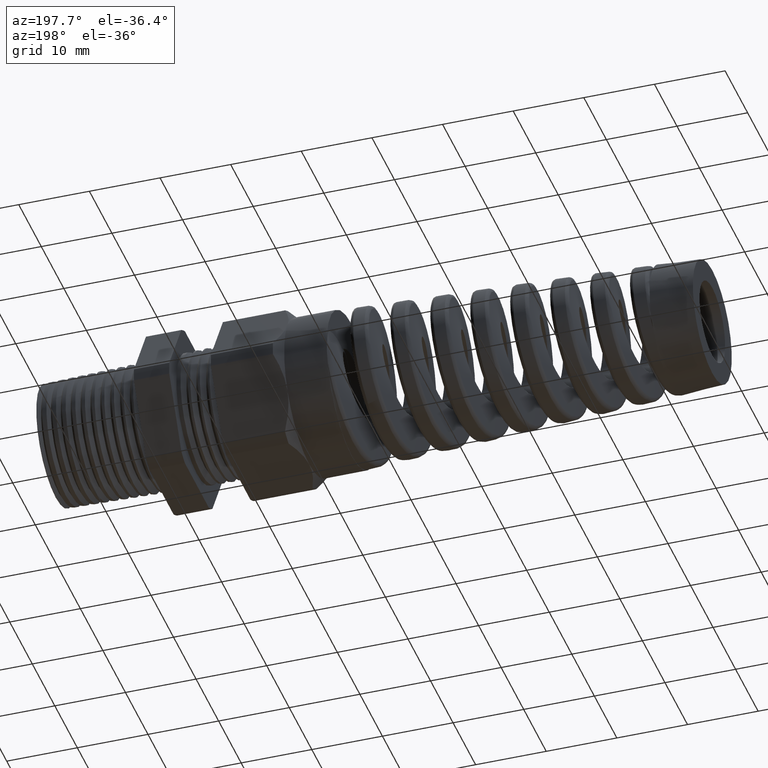
[diagram: clean part render]
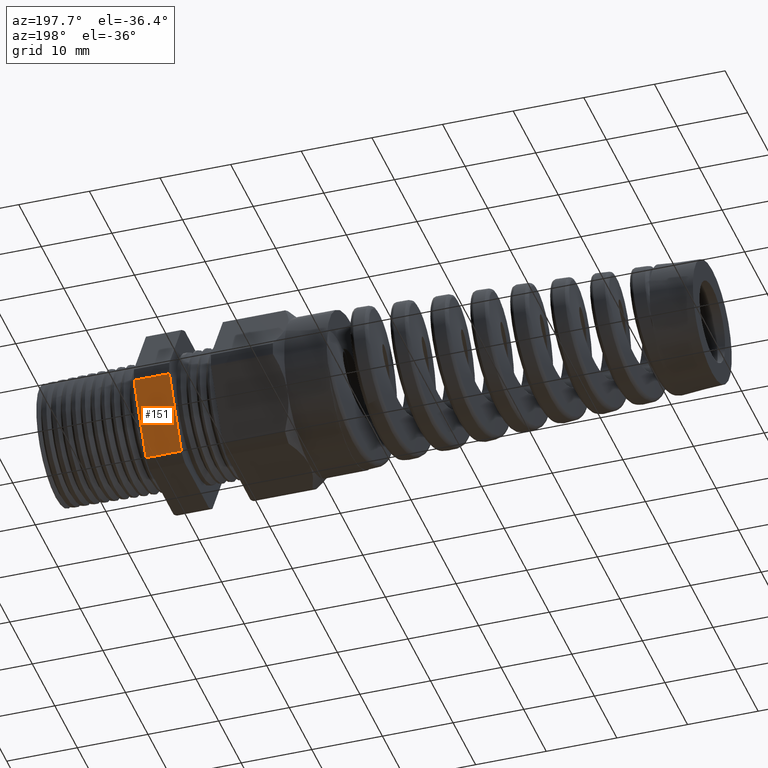
[diagram: same view with one face highlighted and labeled with its STEP entity id]
A machine part, auxiliary view. The second image highlights one B-rep face of the part: STEP entity #151.
In plain terms, the highlighted planar face has unit normal (0, 0.866, -0.5).
Its self-contained STEP definition (entity closure, byte-faithful):
#151 = ADVANCED_FACE ( 'NONE', ( #10973 ), #10972, .T. ) ;
#155 = ORIENTED_EDGE ( 'NONE', *, *, #157, .T. ) ;
#156 = EDGE_LOOP ( 'NONE', ( #155, #7973, #7943, #7935 ) ) ;
#157 = EDGE_CURVE ( 'NONE', #5263, #6843, #10971, .T. ) ;
#5262 = EDGE_CURVE ( 'NONE', #5263, #5264, #14309, .T. ) ;
#5263 = VERTEX_POINT ( 'NONE', #14305 ) ;
#5264 = VERTEX_POINT ( 'NONE', #14304 ) ;
#6843 = VERTEX_POINT ( 'NONE', #14918 ) ;
#6993 = EDGE_CURVE ( 'NONE', #15414, #6843, #14902, .T. ) ;
#7388 = EDGE_CURVE ( 'NONE', #5264, #15414, #14963, .T. ) ;
#7935 = ORIENTED_EDGE ( 'NONE', *, *, #5262, .F. ) ;
#7943 = ORIENTED_EDGE ( 'NONE', *, *, #7388, .F. ) ;
#7973 = ORIENTED_EDGE ( 'NONE', *, *, #6993, .F. ) ;
#8959 = CARTESIAN_POINT ( 'NONE',  ( -0.5068503937007874400, 0.4815054990391102700, -0.03600801154045385500 ) ) ;
#10964 = DIRECTION ( 'NONE',  ( -1.000000000000000000, 0.0000000000000000000, 0.0000000000000000000 ) ) ;
#10965 = VECTOR ( 'NONE', #10964, 39.37007874015748100 ) ;
#10966 = CARTESIAN_POINT ( 'NONE',  ( 0.2800000000000000300, 0.2719366022533517000, -0.3989919884595459800 ) ) ;
#10967 = DIRECTION ( 'NONE',  ( 0.0000000000000000000, 0.4999999999999997200, 0.8660254037844388200 ) ) ;
#10968 = DIRECTION ( 'NONE',  ( 0.0000000000000000000, 0.8660254037844388200, -0.4999999999999997200 ) ) ;
#10969 = CARTESIAN_POINT ( 'NONE',  ( 0.2800000000000000300, 0.4815054990391102700, -0.03600801154045385500 ) ) ;
#10970 = AXIS2_PLACEMENT_3D ( 'NONE', #10969, #10968, #10967 ) ;
#10971 = LINE ( 'NONE', #10966, #10965 ) ;
#10972 = PLANE ( 'NONE',  #10970 ) ;
#10973 = FACE_OUTER_BOUND ( 'NONE', #156, .T. ) ;
#14304 = CARTESIAN_POINT ( 'NONE',  ( -0.3100000000000000000, 0.4815054990391102700, -0.03600801154045387600 ) ) ;
#14305 = CARTESIAN_POINT ( 'NONE',  ( -0.3100000000000000000, 0.2719366022533517000, -0.3989919884595459800 ) ) ;
#14306 = DIRECTION ( 'NONE',  ( 0.0000000000000000000, 0.4999999999999997200, 0.8660254037844388200 ) ) ;
#14307 = VECTOR ( 'NONE', #14306, 39.37007874015748100 ) ;
#14308 = CARTESIAN_POINT ( 'NONE',  ( -0.3100000000000000000, 0.5942210506462306500, 0.1592210506462307400 ) ) ;
#14309 = LINE ( 'NONE', #14308, #14307 ) ;
#14899 = DIRECTION ( 'NONE',  ( 0.0000000000000000000, -0.4999999999999997200, -0.8660254037844388200 ) ) ;
#14900 = VECTOR ( 'NONE', #14899, 39.37007874015748100 ) ;
#14901 = CARTESIAN_POINT ( 'NONE',  ( -0.5068503937007874400, 0.5942210506462306500, 0.1592210506462307400 ) ) ;
#14902 = LINE ( 'NONE', #14901, #14900 ) ;
#14918 = CARTESIAN_POINT ( 'NONE',  ( -0.5068503937007874400, 0.2719366022533517000, -0.3989919884595459800 ) ) ;
#14960 = DIRECTION ( 'NONE',  ( -1.000000000000000000, 0.0000000000000000000, 0.0000000000000000000 ) ) ;
#14961 = VECTOR ( 'NONE', #14960, 39.37007874015748100 ) ;
#14962 = CARTESIAN_POINT ( 'NONE',  ( 0.2800000000000000300, 0.4815054990391102700, -0.03600801154045385500 ) ) ;
#14963 = LINE ( 'NONE', #14962, #14961 ) ;
#15414 = VERTEX_POINT ( 'NONE', #8959 ) ;